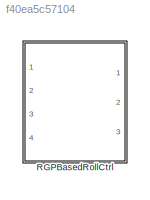
MODEL slx_f40ea5c57104
KIND library
CONFIG AbsTol = auto
CONFIG EnableMultiTasking = off
CONFIG FixedStep = auto
CONFIG MaxStep = auto
CONFIG MinStep = auto
CONFIG RelTol = 1e-3
CONFIG SampleTimeConstraint = Unconstrained
CONFIG Solver = VariableStepAuto
CONFIG SolverName = VariableStepAuto
CONFIG StartTime = 0.0
CONFIG StopTime = 10.0
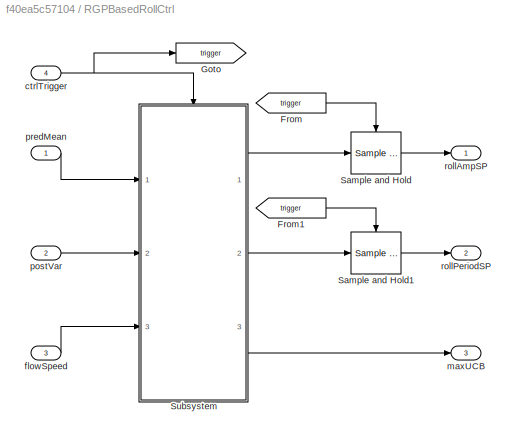
BLOCK [SubSystem] RGPBasedRollCtrl
  Ports = [4, 3]
  RequestExecContextInheritance = off
BLOCK [From] RGPBasedRollCtrl/From
  GotoTag = trigger
BLOCK [From] RGPBasedRollCtrl/From1
  GotoTag = trigger
BLOCK [Goto] RGPBasedRollCtrl/Goto
  GotoTag = trigger
BLOCK [Reference] RGPBasedRollCtrl/Sample and Hold  REF=dspsigops/Sample
and Hold
  Ports = [1, 1, 0, 1]
  SourceBlock = dspsigops/Sample\nand Hold
  SourceProductBaseCode = DS
  SourceType = Sample and Hold
BLOCK [Reference] RGPBasedRollCtrl/Sample and Hold1  REF=dspsigops/Sample
and Hold
  Ports = [1, 1, 0, 1]
  SourceBlock = dspsigops/Sample\nand Hold
  SourceProductBaseCode = DS
  SourceType = Sample and Hold
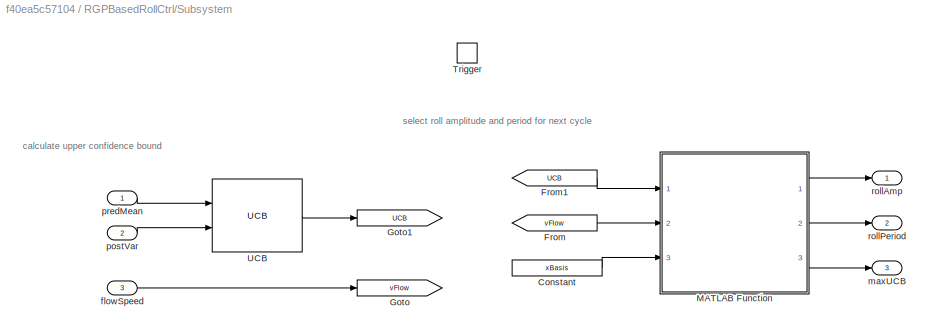
BLOCK [SubSystem] RGPBasedRollCtrl/Subsystem
  Ports = [3, 3, 0, 1]
  RequestExecContextInheritance = off
BLOCK [Constant] RGPBasedRollCtrl/Subsystem/Constant
  Value = xBasis
  VectorParams1D = off
BLOCK [From] RGPBasedRollCtrl/Subsystem/From
  GotoTag = vFlow
BLOCK [From] RGPBasedRollCtrl/Subsystem/From1
  GotoTag = UCB
BLOCK [Goto] RGPBasedRollCtrl/Subsystem/Goto
  GotoTag = vFlow
BLOCK [Goto] RGPBasedRollCtrl/Subsystem/Goto1
  GotoTag = UCB
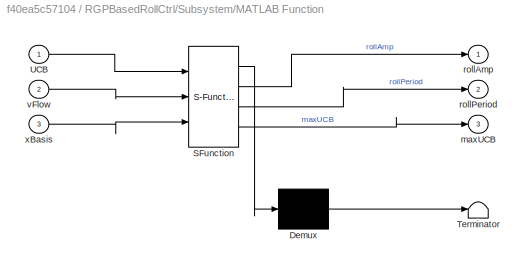
BLOCK [SubSystem] RGPBasedRollCtrl/Subsystem/MATLAB Function
  ErrorFcn = Stateflow.Translate.translate
  PermitHierarchicalResolution = ExplicitOnly
  Ports = [3, 3]
  RequestExecContextInheritance = off
  SFBlockType = MATLAB Function
  TreatAsAtomicUnit = on
BLOCK [Demux] RGPBasedRollCtrl/Subsystem/MATLAB Function/ Demux 
  Outputs = 1
  Ports = [1, 1]
BLOCK [S-Function] RGPBasedRollCtrl/Subsystem/MATLAB Function/ SFunction 
  EnableBusSupport = off
  FunctionName = sf_sfun
  PortCounts = [3 4]
  Ports = [3, 4]
  SFcnIsStateOwnerBlock = off
  SFunctionDeploymentMode = off
  Tag = Stateflow S-Function RGP_ctrl 2
BLOCK [Terminator] RGPBasedRollCtrl/Subsystem/MATLAB Function/ Terminator 
BLOCK [Inport] RGPBasedRollCtrl/Subsystem/MATLAB Function/UCB
BLOCK [Outport] RGPBasedRollCtrl/Subsystem/MATLAB Function/maxUCB
  Port = 3
BLOCK [Outport] RGPBasedRollCtrl/Subsystem/MATLAB Function/rollAmp
BLOCK [Outport] RGPBasedRollCtrl/Subsystem/MATLAB Function/rollPeriod
  Port = 2
BLOCK [Inport] RGPBasedRollCtrl/Subsystem/MATLAB Function/vFlow
  Port = 2
BLOCK [Inport] RGPBasedRollCtrl/Subsystem/MATLAB Function/xBasis
  Port = 3
BLOCK [TriggerPort] RGPBasedRollCtrl/Subsystem/Trigger
  Ports = []
  StatesWhenEnabling = held
  VariantControl = Variant
BLOCK [Reference] RGPBasedRollCtrl/Subsystem/UCB  REF=calcUCB/UCB
  Ports = [2, 1]
  SourceBlock = calcUCB/UCB
BLOCK [Inport] RGPBasedRollCtrl/Subsystem/flowSpeed
  Port = 3
BLOCK [Outport] RGPBasedRollCtrl/Subsystem/maxUCB
  Port = 3
BLOCK [Inport] RGPBasedRollCtrl/Subsystem/postVar
  Port = 2
BLOCK [Inport] RGPBasedRollCtrl/Subsystem/predMean
BLOCK [Outport] RGPBasedRollCtrl/Subsystem/rollAmp
BLOCK [Outport] RGPBasedRollCtrl/Subsystem/rollPeriod
  Port = 2
BLOCK [Inport] RGPBasedRollCtrl/ctrlTrigger
  Port = 4
BLOCK [Inport] RGPBasedRollCtrl/flowSpeed
  Port = 3
BLOCK [Outport] RGPBasedRollCtrl/maxUCB
  Port = 3
BLOCK [Inport] RGPBasedRollCtrl/postVar
  Port = 2
BLOCK [Inport] RGPBasedRollCtrl/predMean
BLOCK [Outport] RGPBasedRollCtrl/rollAmpSP
BLOCK [Outport] RGPBasedRollCtrl/rollPeriodSP
  Port = 2
ANNOTATION RGPBasedRollCtrl/Subsystem: calculate upper confidence bound
ANNOTATION RGPBasedRollCtrl/Subsystem: select roll amplitude and period for next cycle
LINE RGPBasedRollCtrl/From1:1 -> RGPBasedRollCtrl/Sample and Hold1:trigger
LINE RGPBasedRollCtrl/From:1 -> RGPBasedRollCtrl/Sample and Hold:trigger
LINE RGPBasedRollCtrl/Sample and Hold1:1 -> RGPBasedRollCtrl/rollPeriodSP:1
LINE RGPBasedRollCtrl/Sample and Hold:1 -> RGPBasedRollCtrl/rollAmpSP:1
LINE RGPBasedRollCtrl/Subsystem/Constant:1 -> RGPBasedRollCtrl/Subsystem/MATLAB Function:3
LINE RGPBasedRollCtrl/Subsystem/From1:1 -> RGPBasedRollCtrl/Subsystem/MATLAB Function:1
LINE RGPBasedRollCtrl/Subsystem/From:1 -> RGPBasedRollCtrl/Subsystem/MATLAB Function:2
LINE RGPBasedRollCtrl/Subsystem/MATLAB Function:1 -> RGPBasedRollCtrl/Subsystem/rollAmp:1
LINE RGPBasedRollCtrl/Subsystem/MATLAB Function:2 -> RGPBasedRollCtrl/Subsystem/rollPeriod:1
LINE RGPBasedRollCtrl/Subsystem/MATLAB Function:3 -> RGPBasedRollCtrl/Subsystem/maxUCB:1
LINE RGPBasedRollCtrl/Subsystem/UCB:1 -> RGPBasedRollCtrl/Subsystem/Goto1:1
LINE RGPBasedRollCtrl/Subsystem/flowSpeed:1 -> RGPBasedRollCtrl/Subsystem/Goto:1
LINE RGPBasedRollCtrl/Subsystem/postVar:1 -> RGPBasedRollCtrl/Subsystem/UCB:2
LINE RGPBasedRollCtrl/Subsystem/predMean:1 -> RGPBasedRollCtrl/Subsystem/UCB:1
LINE RGPBasedRollCtrl/Subsystem:1 -> RGPBasedRollCtrl/Sample and Hold:1
LINE RGPBasedRollCtrl/Subsystem:2 -> RGPBasedRollCtrl/Sample and Hold1:1
LINE RGPBasedRollCtrl/Subsystem:3 -> RGPBasedRollCtrl/maxUCB:1
NET RGPBasedRollCtrl/ctrlTrigger:1 -> RGPBasedRollCtrl/Goto:1, RGPBasedRollCtrl/Subsystem:trigger
LINE RGPBasedRollCtrl/flowSpeed:1 -> RGPBasedRollCtrl/Subsystem:3
LINE RGPBasedRollCtrl/postVar:1 -> RGPBasedRollCtrl/Subsystem:2
LINE RGPBasedRollCtrl/predMean:1 -> RGPBasedRollCtrl/Subsystem:1
note: NET lines group one-source signal fan-out (src -> all destinations, sorted); 1:1 wires keep LINE
CHART RGPBasedRollCtrl/Subsystem/MATLAB Function states=1 transitions=1
  STATE_LABEL 'eML_blk_kernel()'
  STATE_LABEL 'SCRIPT:\nfunction [rollAmp,rollPeriod,maxUCB] = ...\n    selectRollAmpAndPeriod(UCB,vFlow,xBasis)\n\n[rollAmp,rollPeriod,maxUCB] = selectRollAmpAndPeriod(UCB,vFlow,xBasis);\n\nend'
